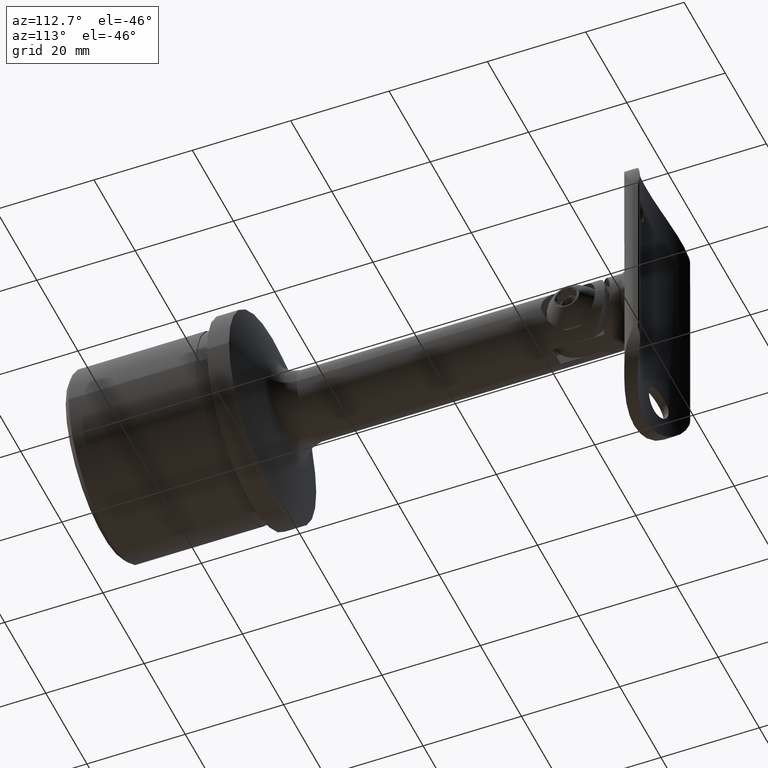
[diagram: clean part render]
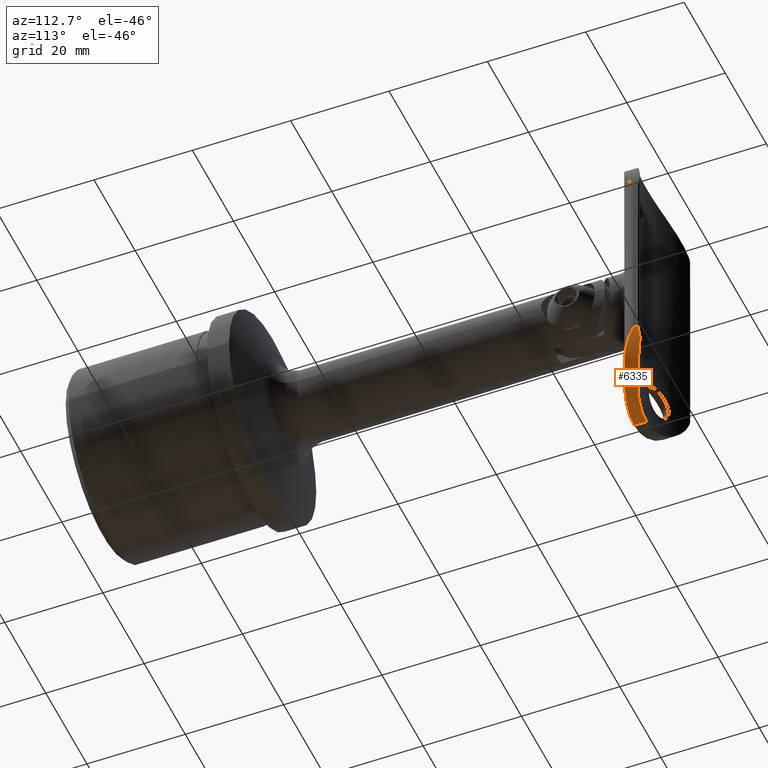
[diagram: same view with one face highlighted and labeled with its STEP entity id]
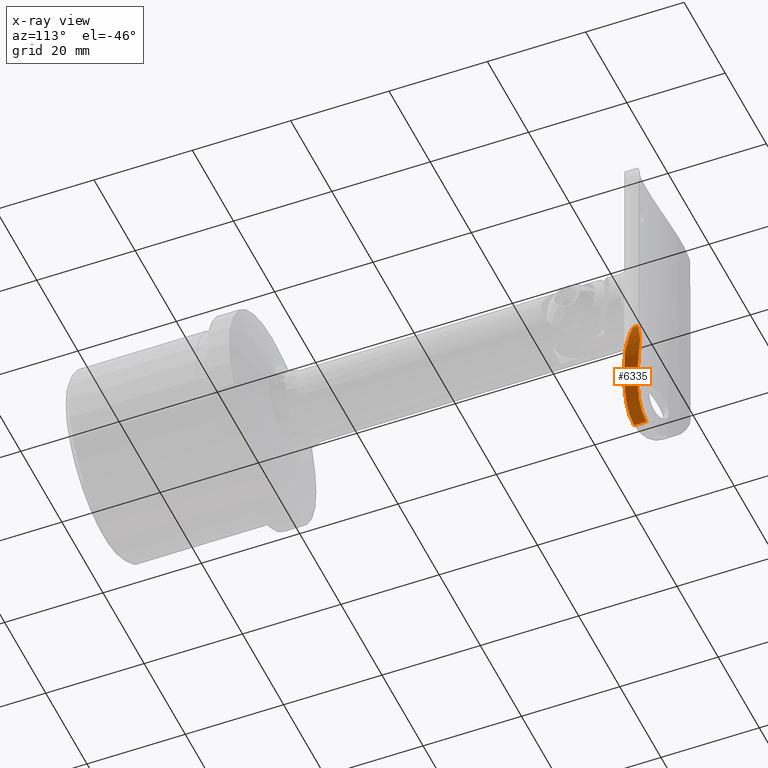
[diagram: x-ray of the same camera — body ghosted, the highlighted face saturated]
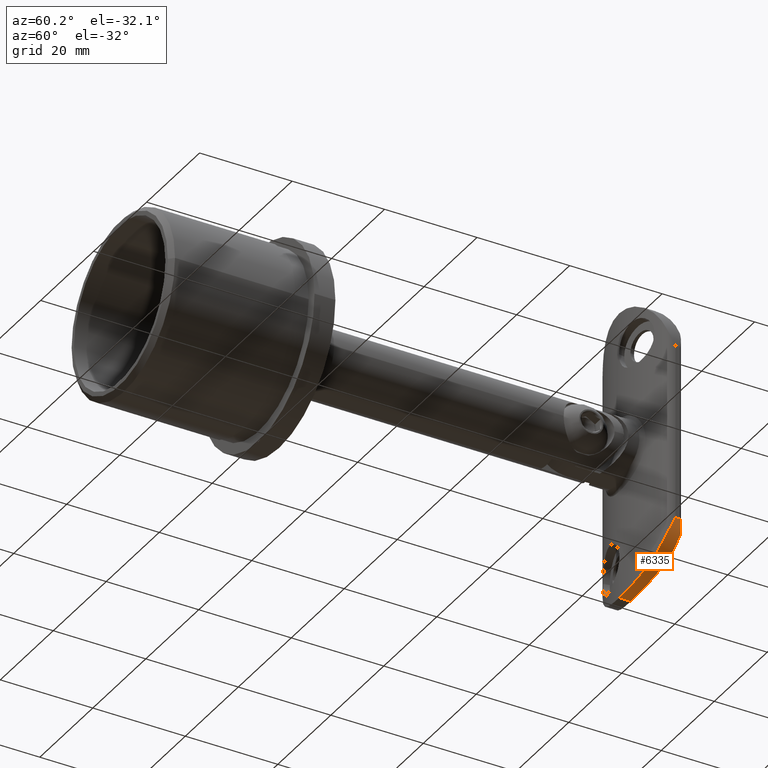
[diagram: same view with one face highlighted and labeled with its STEP entity id]
A machine part, auxiliary view. The second image highlights one B-rep face of the part: STEP entity #6335.
The next image is the same camera in x-ray: the body ghosted, the highlighted face saturated — about 0% of this face is hidden behind the body in this view.
A second angle (auxiliary view) of the same face is appended — the face is thin or edge-on in the first view.
In plain terms, the highlighted cylindrical surface (partial cylindrical patch) has radius 12.5 mm, axis along (0, 1, 0).
Its self-contained STEP definition (entity closure, byte-faithful):
#325 = CARTESIAN_POINT ( 'NONE',  ( 10.14642322791592299, 5.084513462552744834, -26.30831600056991704 ) ) ;
#1112 = EDGE_CURVE ( 'NONE', #15394, #4656, #3943, .T. ) ;
#1316 = CARTESIAN_POINT ( 'NONE',  ( 11.17924528301885267, 2.802285414378422157, -24.59235861708641835 ) ) ;
#1321 = CARTESIAN_POINT ( 'NONE',  ( 12.02976744186046076, 6.243634533650649132, -22.39627668112508374 ) ) ;
#1322 = CARTESIAN_POINT ( 'NONE',  ( 12.49999999999999645, 6.085081508389877492, -19.57108701179578958 ) ) ;
#1368 = CARTESIAN_POINT ( 'NONE',  ( 12.06863779505090406, 6.270421398887021880, -22.25859611114601222 ) ) ;
#1441 = FACE_OUTER_BOUND ( 'NONE', #11455, .T. ) ;
#1589 = VECTOR ( 'NONE', #11981, 1000.000000000000000 ) ;
#1624 = CARTESIAN_POINT ( 'NONE',  ( 11.92967504011798852, 3.400286981363781713, -22.76441849119574101 ) ) ;
#1962 = CARTESIAN_POINT ( 'NONE',  ( 12.49999999999999645, 5.996610494032508676, -19.00000000000000355 ) ) ;
#2099 = CARTESIAN_POINT ( 'NONE',  ( -3.469446951953614189E-15, 5.006685687123313855, -31.50000000000000000 ) ) ;
#2103 = B_SPLINE_CURVE_WITH_KNOTS ( 'NONE', 3,
 ( #9341, #1322, #3728, #2378, #8449, #9624, #13160, #8555, #1368, #7317 ),
 .UNSPECIFIED., .F., .F.,
 ( 4, 2, 2, 2, 4 ),
 ( -2.236068830504087557E-05, 0.001711336276458819746, 0.002578184758840745307, 0.003011609000031703533, 0.003445033241222661760 ),
 .UNSPECIFIED. ) ;
#2366 = CARTESIAN_POINT ( 'NONE',  ( 6.146523236557475123, 0.8053228540540853242, -29.89947896004555972 ) ) ;
#2378 = CARTESIAN_POINT ( 'NONE',  ( 12.34391352243714479, 6.264399589697728921, -20.98982643594374409 ) ) ;
#2677 = CARTESIAN_POINT ( 'NONE',  ( 6.516962566284503211, 3.524343658925991996, -29.67198160259718520 ) ) ;
#2731 = CARTESIAN_POINT ( 'NONE',  ( 3.430947074219236281, 2.776708263047711345, -31.02493485786585126 ) ) ;
#2737 = LINE ( 'NONE', #1962, #8727 ) ;
#2821 = CARTESIAN_POINT ( 'NONE',  ( 12.44607558263662028, 4.479267212257425967, -20.18395034147693323 ) ) ;
#2828 = CARTESIAN_POINT ( 'NONE',  ( 9.947638468190435290, 4.977312456030341892, -26.57654424249900416 ) ) ;
#2872 = CARTESIAN_POINT ( 'NONE',  ( 4.730732436250050910, 3.024100464181159520, -30.59036555558538950 ) ) ;
#3607 = ORIENTED_EDGE ( 'NONE', *, *, #7752, .F. ) ;
#3613 = CARTESIAN_POINT ( 'NONE',  ( 8.456578280304217543, 1.555233764647820482, -28.22274285922546255 ) ) ;
#3661 = CARTESIAN_POINT ( 'NONE',  ( -3.469446951953614189E-15, 0.000000000000000000, -31.50000000000000000 ) ) ;
#3728 = CARTESIAN_POINT ( 'NONE',  ( 12.46093705877153646, 6.174375108477674345, -20.14082811837846876 ) ) ;
#3918 = CARTESIAN_POINT ( 'NONE',  ( 12.06561495597839517, 3.581232545592837990, -22.30174197645888512 ) ) ;
#3931 = CARTESIAN_POINT ( 'NONE',  ( 1.395764811452765874, 2.534880467288277206, -31.44110164295595666 ) ) ;
#3943 = B_SPLINE_CURVE_WITH_KNOTS ( 'NONE', 3,
 ( #12263, #10020, #12321, #1624, #3918, #13557, #7511, #2821, #14753, #9963, #7674, #6250, #8879, #13613 ),
 .UNSPECIFIED., .F., .F.,
 ( 4, 2, 2, 2, 2, 2, 4 ),
 ( 0.000000000000000000, 0.001543844399976584784, 0.003087688799953169569, 0.004631533199929754353, 0.005403455399918047179, 0.005789416499912198796, 0.006175377599906348679 ),
 .UNSPECIFIED. ) ;
#3972 = CARTESIAN_POINT ( 'NONE',  ( 5.346448697014698048, 3.176075570761545563, -30.31869531197238388 ) ) ;
#4339 = DIRECTION ( 'NONE',  ( 0.000000000000000000, 1.000000000000000000, -0.000000000000000000 ) ) ;
#4656 = VERTEX_POINT ( 'NONE', #11757 ) ;
#4684 = CARTESIAN_POINT ( 'NONE',  ( 7.118001569650297178, 1.088497547285915745, -29.29137712614168976 ) ) ;
#4727 = CARTESIAN_POINT ( 'NONE',  ( 10.92052543071643811, 2.663883070111307649, -25.10954517226159055 ) ) ;
#4787 = CARTESIAN_POINT ( 'NONE',  ( 12.49999999999999645, 5.996610494032508676, -19.00000000000000355 ) ) ;
#4792 = CARTESIAN_POINT ( 'NONE',  ( 11.84208029175452026, 6.114293017975321654, -23.06107315667374635 ) ) ;
#4830 = CARTESIAN_POINT ( 'NONE',  ( 1.191149906656473911, -1.829591166069288732E-16, -31.50000000000000711 ) ) ;
#4848 = CARTESIAN_POINT ( 'NONE',  ( -3.469446951953614189E-15, 0.000000000000000000, -31.50000000000000000 ) ) ;
#4878 = CARTESIAN_POINT ( 'NONE',  ( 3.756498663813404804, 0.2978691253960658036, -30.92579670692921567 ) ) ;
#4978 = B_SPLINE_CURVE_WITH_KNOTS ( 'NONE', 3,
 ( #3661, #4830, #7259, #4878, #7306, #10752, #13204, #8389, #2366, #4684, #6044, #3613, #8483, #10705, #11914, #9564, #4727, #1316 ),
 .UNSPECIFIED., .F., .F.,
 ( 4, 2, 2, 2, 2, 2, 2, 2, 4 ),
 ( 0.000000000000000000, 0.003518527904062444291, 0.004398159880078054279, 0.005277791856093662533, 0.007037055808124879040, 0.008796319760156096415, 0.01055558371218731119, 0.01231484766421852770, 0.01407411161624974247 ),
 .UNSPECIFIED. ) ;
#5167 = AXIS2_PLACEMENT_3D ( 'NONE', #14765, #14867, #5255 ) ;
#5255 = DIRECTION ( 'NONE',  ( 0.000000000000000000, 0.000000000000000000, 1.000000000000000000 ) ) ;
#6044 = CARTESIAN_POINT ( 'NONE',  ( 7.585183079155177310, 1.241830317565837616, -28.95176867265339737 ) ) ;
#6119 = CARTESIAN_POINT ( 'NONE',  ( 11.60465000892403076, 5.955023219743799778, -23.69341188742173543 ) ) ;
#6250 = CARTESIAN_POINT ( 'NONE',  ( 12.49831277919190242, 4.900633578918103694, -19.23713970776272220 ) ) ;
#6260 = VERTEX_POINT ( 'NONE', #14310 ) ;
#6263 = CARTESIAN_POINT ( 'NONE',  ( 6.229436765638797446, 3.433571738102620508, -29.84232271663579183 ) ) ;
#6268 = VERTEX_POINT ( 'NONE', #4787 ) ;
#6335 = ADVANCED_FACE ( 'NONE', ( #1441 ), #11728, .T. ) ;
#6370 = CARTESIAN_POINT ( 'NONE',  ( 10.70971311891985067, 5.398988599153228485, -25.48055501073386608 ) ) ;
#6415 = CARTESIAN_POINT ( 'NONE',  ( 8.637843099528536683, 4.333065544328849050, -28.05933440120906752 ) ) ;
#6473 = CARTESIAN_POINT ( 'NONE',  ( 7.078643055855715183, 3.714487187683699343, -29.30799713350330293 ) ) ;
#6643 = ORIENTED_EDGE ( 'NONE', *, *, #8351, .F. ) ;
#7147 = ORIENTED_EDGE ( 'NONE', *, *, #1112, .F. ) ;
#7259 = CARTESIAN_POINT ( 'NONE',  ( 2.348751479235721806, 0.08920684470868021909, -31.33320377633304332 ) ) ;
#7306 = CARTESIAN_POINT ( 'NONE',  ( 4.036625504201330372, 0.3446350445401136220, -30.83387565955001719 ) ) ;
#7310 = EDGE_CURVE ( 'NONE', #6260, #10625, #8313, .T. ) ;
#7317 = CARTESIAN_POINT ( 'NONE',  ( 12.02976744186046076, 6.243634533650649132, -22.39627668112508374 ) ) ;
#7511 = CARTESIAN_POINT ( 'NONE',  ( 12.36503220955341753, 4.168564775691900870, -20.89264939591395631 ) ) ;
#7642 = CARTESIAN_POINT ( 'NONE',  ( -3.469446951953614189E-15, 2.500000000000002220, -31.50000000000000000 ) ) ;
#7674 = CARTESIAN_POINT ( 'NONE',  ( 12.49156585855732793, 4.794757952270547463, -19.47417293135979577 ) ) ;
#7752 = EDGE_CURVE ( 'NONE', #10625, #10915, #7761, .T. ) ;
#7761 = LINE ( 'NONE', #2099, #1589 ) ;
#8313 = B_SPLINE_CURVE_WITH_KNOTS ( 'NONE', 3,
 ( #1321, #4792, #6119, #14606, #6370, #325, #2828, #11023, #14767, #6415, #13627, #11183, #6473, #2677, #6263, #3972, #2872, #11223, #2731, #9822, #12215, #3931, #9885, #7642 ),
 .UNSPECIFIED., .F., .F.,
 ( 4, 2, 2, 2, 2, 2, 2, 2, 2, 2, 2, 4 ),
 ( 0.000000000000000000, 0.002074056762175163597, 0.004148113524350327194, 0.005185141905437912896, 0.006222170286525497730, 0.008296227048700671736, 0.009333255429788260907, 0.01037028381087585181, 0.01244434057305102842, 0.01348136895413861759, 0.01451839733522620676, 0.01659245409740138510 ),
 .UNSPECIFIED. ) ;
#8351 = EDGE_CURVE ( 'NONE', #6268, #6260, #2103, .T. ) ;
#8389 = CARTESIAN_POINT ( 'NONE',  ( 5.641088347099066702, 0.6748318991826155466, -30.16962410687992246 ) ) ;
#8449 = CARTESIAN_POINT ( 'NONE',  ( 12.29513160341924305, 6.287270635802531871, -21.27224409882308365 ) ) ;
#8483 = CARTESIAN_POINT ( 'NONE',  ( 8.864230091724762062, 1.716223882264966472, -27.83150321815799089 ) ) ;
#8555 = CARTESIAN_POINT ( 'NONE',  ( 12.10544605695982767, 6.283488251478397402, -22.11915485593517516 ) ) ;
#8727 = VECTOR ( 'NONE', #4339, 1000.000000000000000 ) ;
#8879 = CARTESIAN_POINT ( 'NONE',  ( 12.49999999999999289, 4.954163077808225069, -19.11744428138216989 ) ) ;
#9066 = ORIENTED_EDGE ( 'NONE', *, *, #13655, .F. ) ;
#9087 = ORIENTED_EDGE ( 'NONE', *, *, #7310, .F. ) ;
#9341 = CARTESIAN_POINT ( 'NONE',  ( 12.49999999999999645, 5.996610494032508676, -19.00000000000000355 ) ) ;
#9564 = CARTESIAN_POINT ( 'NONE',  ( 10.62898373873825797, 2.514058381776716811, -25.60320397530630743 ) ) ;
#9624 = CARTESIAN_POINT ( 'NONE',  ( 12.20661744372917390, 6.298006486763355838, -21.69616935298125782 ) ) ;
#9822 = CARTESIAN_POINT ( 'NONE',  ( 2.758420451831784970, 2.677472760235852789, -31.19678534585760588 ) ) ;
#9885 = CARTESIAN_POINT ( 'NONE',  ( 0.7031668755135297433, 2.500000000000001776, -31.50000000000000000 ) ) ;
#9963 = CARTESIAN_POINT ( 'NONE',  ( 12.48650828895286224, 4.741930303162158467, -19.59258713081638703 ) ) ;
#10020 = CARTESIAN_POINT ( 'NONE',  ( 11.40638732152775248, 2.923795187716173416, -24.13829679157730013 ) ) ;
#10625 = VERTEX_POINT ( 'NONE', #14999 ) ;
#10705 = CARTESIAN_POINT ( 'NONE',  ( 9.625726458326758106, 2.038827878824187145, -26.99471164963705050 ) ) ;
#10752 = CARTESIAN_POINT ( 'NONE',  ( 4.583825848402386605, 0.4458399795776203933, -30.63286289691309605 ) ) ;
#10915 = VERTEX_POINT ( 'NONE', #4848 ) ;
#11023 = CARTESIAN_POINT ( 'NONE',  ( 9.532778499498476776, 4.762717353262155839, -27.09232153537329069 ) ) ;
#11144 = ORIENTED_EDGE ( 'NONE', *, *, #11625, .F. ) ;
#11183 = CARTESIAN_POINT ( 'NONE',  ( 7.353975406779963642, 3.814336888743670606, -29.11339000564440838 ) ) ;
#11223 = CARTESIAN_POINT ( 'NONE',  ( 3.762581745270504374, 2.833971595921216835, -30.92516580111275815 ) ) ;
#11266 = CARTESIAN_POINT ( 'NONE',  ( 11.17924528301885267, 2.802285414378422157, -24.59235861708641835 ) ) ;
#11455 = EDGE_LOOP ( 'NONE', ( #3607, #9087, #6643, #9066, #7147, #11144 ) ) ;
#11625 = EDGE_CURVE ( 'NONE', #10915, #15394, #4978, .T. ) ;
#11728 = CYLINDRICAL_SURFACE ( 'NONE', #5167, 12.50000000000000000 ) ;
#11757 = CARTESIAN_POINT ( 'NONE',  ( 12.49999999999999645, 5.006685687123313855, -19.00000000000000355 ) ) ;
#11914 = CARTESIAN_POINT ( 'NONE',  ( 9.981064643358212862, 2.201214774917343853, -26.54691636650148467 ) ) ;
#11981 = DIRECTION ( 'NONE',  ( -0.000000000000000000, -1.000000000000000000, 0.000000000000000000 ) ) ;
#12215 = CARTESIAN_POINT ( 'NONE',  ( 2.419642916394813437, 2.635742614137650541, -31.26846039778233433 ) ) ;
#12263 = CARTESIAN_POINT ( 'NONE',  ( 11.17924528301885267, 2.802285414378422157, -24.59235861708641835 ) ) ;
#12321 = CARTESIAN_POINT ( 'NONE',  ( 11.60000298519502415, 3.071704289360723372, -23.68272611660526650 ) ) ;
#13160 = CARTESIAN_POINT ( 'NONE',  ( 12.17442778619104260, 6.297584509094500405, -21.83800270121219000 ) ) ;
#13204 = CARTESIAN_POINT ( 'NONE',  ( 4.852019650103158277, 0.5004209894299677108, -30.52349775121275854 ) ) ;
#13557 = CARTESIAN_POINT ( 'NONE',  ( 12.28334954160289527, 3.965053949932769051, -21.36640832990508088 ) ) ;
#13613 = CARTESIAN_POINT ( 'NONE',  ( 12.49999999999999645, 5.006685687123313855, -19.00000000000000355 ) ) ;
#13627 = CARTESIAN_POINT ( 'NONE',  ( 8.148540345967703047, 4.120329500684690949, -28.50251214097132291 ) ) ;
#13655 = EDGE_CURVE ( 'NONE', #4656, #6268, #2737, .T. ) ;
#14310 = CARTESIAN_POINT ( 'NONE',  ( 12.02976744186046076, 6.243634533650649132, -22.39627668112508374 ) ) ;
#14606 = CARTESIAN_POINT ( 'NONE',  ( 11.03849946007475502, 5.597413653530566080, -24.90318106147368482 ) ) ;
#14753 = CARTESIAN_POINT ( 'NONE',  ( 12.46628496188731283, 4.583939871958451207, -19.94759394247418882 ) ) ;
#14765 = CARTESIAN_POINT ( 'NONE',  ( -3.469446951953614189E-15, 5.996610494032508676, -19.00000000000000355 ) ) ;
#14767 = CARTESIAN_POINT ( 'NONE',  ( 9.316057372395615488, 4.654956131848448919, -27.34083588949475896 ) ) ;
#14867 = DIRECTION ( 'NONE',  ( 0.000000000000000000, 1.000000000000000000, -0.000000000000000000 ) ) ;
#14999 = CARTESIAN_POINT ( 'NONE',  ( -3.469446951953614189E-15, 2.500000000000002220, -31.50000000000000000 ) ) ;
#15394 = VERTEX_POINT ( 'NONE', #11266 ) ;